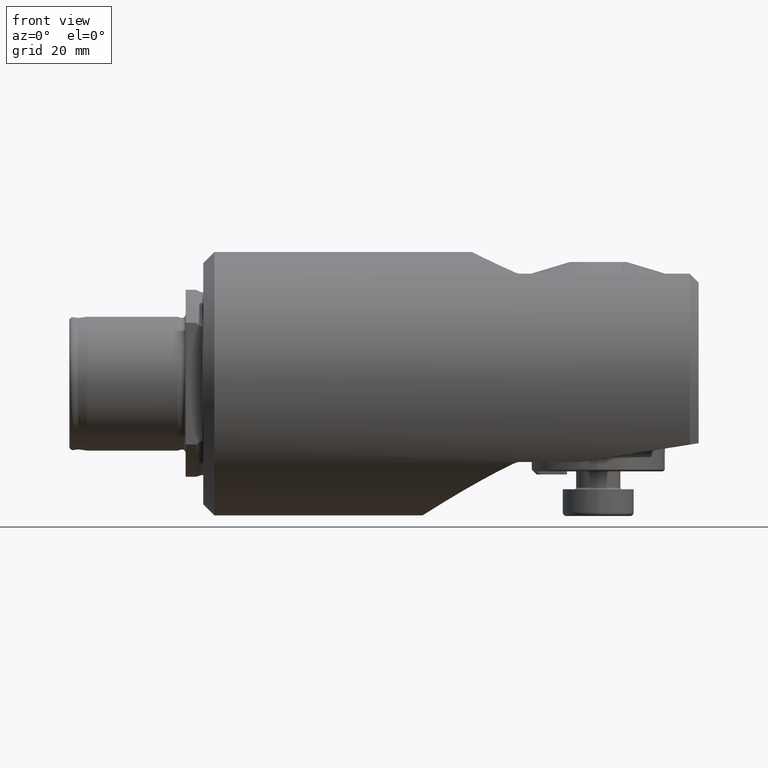
[diagram: clean part render]
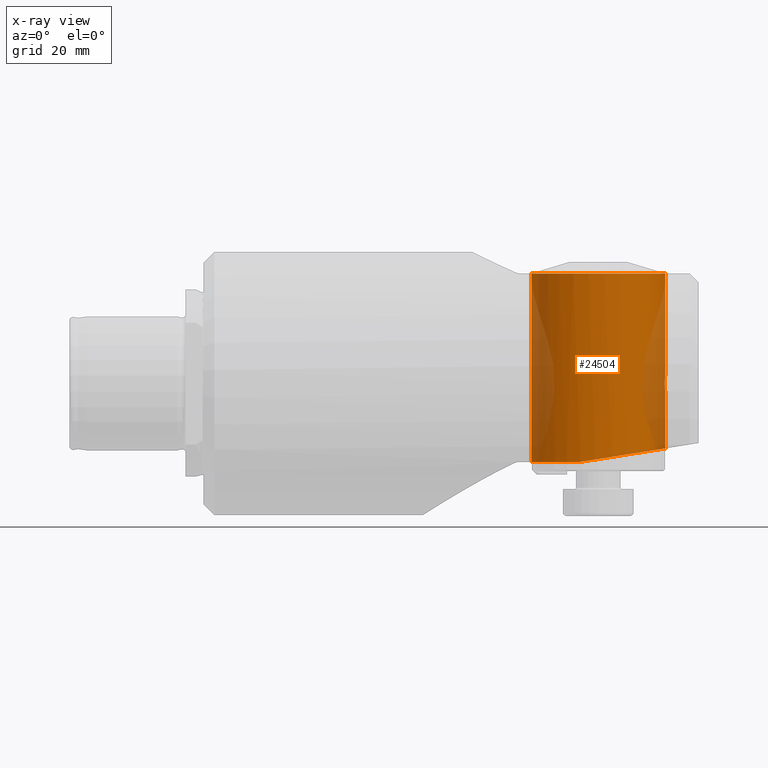
[diagram: x-ray — body ghosted, one internal face saturated and labeled with its STEP entity id]
A machine part, front view, then the same camera in x-ray: the body is ghosted and one INTERNAL B-rep face — a face not visible from any outside direction — is saturated and labeled: STEP entity #24504.
In plain terms, the highlighted cylindrical surface (partial cylindrical patch) has radius 15 mm, axis along (0, 0, 1).
Its self-contained STEP definition (entity closure, byte-faithful):
#8 = DIRECTION ( 'NONE',  ( -9.925724861851712300E-016, -6.123031769111787700E-017, -1.000000000000000000 ) ) ;
#39 = CIRCLE ( 'NONE', #6549, 15.00000000000000700 ) ;
#47 = EDGE_CURVE ( 'NONE', #17329, #16570, #21514, .T. ) ;
#57 = ORIENTED_EDGE ( 'NONE', *, *, #14494, .T. ) ;
#74 = EDGE_CURVE ( 'NONE', #14974, #10625, #25104, .T. ) ;
#99 = CARTESIAN_POINT ( 'NONE',  ( -8.133191757876966600, -4.312171255187561100, 24.65000000000002700 ) ) ;
#299 = ORIENTED_EDGE ( 'NONE', *, *, #24471, .F. ) ;
#690 = CARTESIAN_POINT ( 'NONE',  ( -7.648431497909873800, -2.104973403091988400, 24.65000000000002700 ) ) ;
#730 = VERTEX_POINT ( 'NONE', #6641 ) ;
#860 = VERTEX_POINT ( 'NONE', #17472 ) ;
#884 = AXIS2_PLACEMENT_3D ( 'NONE', #21327, #11118, #8999 ) ;
#959 = CARTESIAN_POINT ( 'NONE',  ( -7.499999999999992000, 1.585807634720539000E-023, 1.650000000000000400 ) ) ;
#962 = DIRECTION ( 'NONE',  ( -9.925724861851714300E-016, -6.123031769111788900E-017, -1.000000000000000000 ) ) ;
#974 = EDGE_CURVE ( 'NONE', #4336, #13707, #23107, .T. ) ;
#1047 = CARTESIAN_POINT ( 'NONE',  ( -7.499999999999992000, -10.82252167691391000, -14.53363547187129300 ) ) ;
#1270 = DIRECTION ( 'NONE',  ( 1.000000000000000000, 0.0000000000000000000, 1.387778780781445700E-015 ) ) ;
#1286 = DIRECTION ( 'NONE',  ( 1.430699774001496500E-015, 0.0000000000000000000, -1.000000000000000000 ) ) ;
#1454 = DIRECTION ( 'NONE',  ( 1.000000000000000000, 0.0000000000000000000, 1.387778780781445700E-015 ) ) ;
#1636 = CARTESIAN_POINT ( 'NONE',  ( -7.500750018750973200, -0.1499999999999999700, 24.64999999998304100 ) ) ;
#1646 = CARTESIAN_POINT ( 'NONE',  ( -7.522600801450062500, -0.8279621712489080300, 1.431267066830854500 ) ) ;
#1734 = CARTESIAN_POINT ( 'NONE',  ( -7.499999999999992000, 1.585807634720539000E-023, 1.650000000000000400 ) ) ;
#1752 = ORIENTED_EDGE ( 'NONE', *, *, #14584, .F. ) ;
#1875 = CARTESIAN_POINT ( 'NONE',  ( -9.075163162305472000, -6.691319442477679400, 24.65999999998304300 ) ) ;
#1909 = CARTESIAN_POINT ( 'NONE',  ( -22.49999999999999300, 0.0000000000000000000, 24.65000000000000600 ) ) ;
#1994 = DIRECTION ( 'NONE',  ( 1.430699774001496500E-015, 0.0000000000000000000, -1.000000000000000000 ) ) ;
#2008 = CARTESIAN_POINT ( 'NONE',  ( -7.539447823765458500, -1.089882594208043000, 1.243590742274552200 ) ) ;
#2052 = DIRECTION ( 'NONE',  ( -0.0000000000000000000, 0.0000000000000000000, 1.000000000000000000 ) ) ;
#2290 = VERTEX_POINT ( 'NONE', #14420 ) ;
#2369 = AXIS2_PLACEMENT_3D ( 'NONE', #1909, #1994, #16353 ) ;
#2594 = ORIENTED_EDGE ( 'NONE', *, *, #19041, .F. ) ;
#2992 = VECTOR ( 'NONE', #22804, 1000.000000000000000 ) ;
#3311 = ORIENTED_EDGE ( 'NONE', *, *, #4922, .F. ) ;
#3533 = VECTOR ( 'NONE', #13720, 1000.000000000000000 ) ;
#3662 = CIRCLE ( 'NONE', #884, 15.00000000000000000 ) ;
#3772 = CARTESIAN_POINT ( 'NONE',  ( -7.499999999999994700, -0.1077280195132854200, 1.650000000000001200 ) ) ;
#4020 = ORIENTED_EDGE ( 'NONE', *, *, #16643, .F. ) ;
#4138 = CARTESIAN_POINT ( 'NONE',  ( -10.23271904283283400, -8.632138664196965300, 24.65999999998304700 ) ) ;
#4336 = VERTEX_POINT ( 'NONE', #17940 ) ;
#4572 = CARTESIAN_POINT ( 'NONE',  ( -22.49999999999999300, 0.0000000000000000000, 24.65000000000000600 ) ) ;
#4726 = CARTESIAN_POINT ( 'NONE',  ( -10.06253835809483200, -8.385078884908466500, 24.65000000000002300 ) ) ;
#4922 = EDGE_CURVE ( 'NONE', #11332, #8201, #19483, .T. ) ;
#5184 = CIRCLE ( 'NONE', #17991, 15.00000000000000000 ) ;
#5193 = ORIENTED_EDGE ( 'NONE', *, *, #21502, .F. ) ;
#5317 = EDGE_CURVE ( 'NONE', #730, #9685, #21041, .T. ) ;
#5391 = DIRECTION ( 'NONE',  ( -9.925724861851712300E-016, -6.123031769111787700E-017, -1.000000000000000000 ) ) ;
#5595 = DIRECTION ( 'NONE',  ( -9.925724861851712300E-016, -6.123031769111787700E-017, -1.000000000000000000 ) ) ;
#5655 = VECTOR ( 'NONE', #25968, 1000.000000000000000 ) ;
#5737 = DIRECTION ( 'NONE',  ( -0.0000000000000000000, 0.0000000000000000000, 1.000000000000000000 ) ) ;
#5845 = VECTOR ( 'NONE', #10706, 1000.000000000000000 ) ;
#5965 = CARTESIAN_POINT ( 'NONE',  ( -7.581903310961537900, -1.565924709530817700, 0.5311105344068015600 ) ) ;
#6143 = CARTESIAN_POINT ( 'NONE',  ( -7.509111904954366400, -0.5322325666824772000, -1.565542981768537100 ) ) ;
#6549 = AXIS2_PLACEMENT_3D ( 'NONE', #25327, #17288, #18971 ) ;
#6641 = CARTESIAN_POINT ( 'NONE',  ( -9.075163162305472000, -6.691319442477679400, 24.64999999998304100 ) ) ;
#6664 = VERTEX_POINT ( 'NONE', #19544 ) ;
#6738 = LINE ( 'NONE', #24832, #18415 ) ;
#6770 = AXIS2_PLACEMENT_3D ( 'NONE', #18520, #8, #22848 ) ;
#6850 = DIRECTION ( 'NONE',  ( -1.000000000000000000, 0.0000000000000000000, 9.251858538542975800E-016 ) ) ;
#7303 = CARTESIAN_POINT ( 'NONE',  ( -9.075163162305472000, -6.691319442477679400, 24.65999999998304300 ) ) ;
#7518 = VECTOR ( 'NONE', #25715, 1000.000000000000000 ) ;
#7530 = EDGE_CURVE ( 'NONE', #15724, #860, #15980, .T. ) ;
#7585 = CARTESIAN_POINT ( 'NONE',  ( -22.50000000000002100, 6.123031769111788000E-019, 24.65999999998305700 ) ) ;
#7591 = DIRECTION ( 'NONE',  ( -9.925724861851714300E-016, -6.123031769111788900E-017, -1.000000000000000000 ) ) ;
#7604 = CARTESIAN_POINT ( 'NONE',  ( -22.50000000000002100, 6.123031769111788000E-019, 24.65999999998305700 ) ) ;
#7830 = EDGE_CURVE ( 'NONE', #13247, #20445, #26345, .T. ) ;
#7906 = VERTEX_POINT ( 'NONE', #18086 ) ;
#7943 = CARTESIAN_POINT ( 'NONE',  ( -7.517539210869959000, -0.7320287462929104800, -1.482676717090739100 ) ) ;
#8030 = CARTESIAN_POINT ( 'NONE',  ( -7.517511305855823200, -0.7314594333631125900, 1.482957601476405200 ) ) ;
#8201 = VERTEX_POINT ( 'NONE', #4138 ) ;
#8202 = CARTESIAN_POINT ( 'NONE',  ( -7.591017481440503400, -1.649921291316965200, -0.2160209898537130100 ) ) ;
#8337 = VERTEX_POINT ( 'NONE', #24949 ) ;
#8700 = EDGE_CURVE ( 'NONE', #18655, #22109, #5184, .T. ) ;
#8731 = DIRECTION ( 'NONE',  ( 1.000000000000000000, 0.0000000000000000000, 1.387778780781445700E-015 ) ) ;
#8800 = CARTESIAN_POINT ( 'NONE',  ( -7.499999999999992000, -9.496446371565344400E-017, -1.649999999999993000 ) ) ;
#8999 = DIRECTION ( 'NONE',  ( 1.000000000000000000, 0.0000000000000000000, 1.387778780781445700E-015 ) ) ;
#9041 = ORIENTED_EDGE ( 'NONE', *, *, #47, .F. ) ;
#9089 = CARTESIAN_POINT ( 'NONE',  ( -7.499999999999992900, 0.0000000000000000000, 24.30887018886629400 ) ) ;
#9534 = CIRCLE ( 'NONE', #16434, 15.00000000000001400 ) ;
#9685 = VERTEX_POINT ( 'NONE', #4726 ) ;
#9776 = CARTESIAN_POINT ( 'NONE',  ( -22.49999999999999300, 0.0000000000000000000, 24.65000000000000600 ) ) ;
#9824 = EDGE_CURVE ( 'NONE', #18655, #4336, #11934, .T. ) ;
#10027 = LINE ( 'NONE', #7303, #3533 ) ;
#10041 = CARTESIAN_POINT ( 'NONE',  ( -7.551464650040493600, -1.243887606660989000, 1.089543769393327400 ) ) ;
#10205 = VECTOR ( 'NONE', #7591, 1000.000000000000000 ) ;
#10225 = CARTESIAN_POINT ( 'NONE',  ( -7.557329058097703700, -1.319035151846401900, -1.014357004551124300 ) ) ;
#10244 = EDGE_CURVE ( 'NONE', #12865, #17329, #12306, .T. ) ;
#10320 = CARTESIAN_POINT ( 'NONE',  ( -7.568345859743725900, -1.431537890829039000, 0.8274954203538418300 ) ) ;
#10384 = CARTESIAN_POINT ( 'NONE',  ( -22.49999999999999300, 0.0000000000000000000, 24.65000000000000600 ) ) ;
#10416 = AXIS2_PLACEMENT_3D ( 'NONE', #4572, #21156, #8731 ) ;
#10418 = ORIENTED_EDGE ( 'NONE', *, *, #74, .F. ) ;
#10433 = VERTEX_POINT ( 'NONE', #20108 ) ;
#10554 = ORIENTED_EDGE ( 'NONE', *, *, #15267, .F. ) ;
#10584 = CARTESIAN_POINT ( 'NONE',  ( -7.500750018750973200, -0.1499999999999999700, 24.65999999998304300 ) ) ;
#10625 = VERTEX_POINT ( 'NONE', #11294 ) ;
#10706 = DIRECTION ( 'NONE',  ( -9.925724861851714300E-016, -6.123031769111788900E-017, -1.000000000000000000 ) ) ;
#10830 = EDGE_CURVE ( 'NONE', #8337, #12386, #6738, .T. ) ;
#10867 = CARTESIAN_POINT ( 'NONE',  ( -11.46333526292900400, -10.15834787165183300, 24.65999999998304700 ) ) ;
#11087 = DIRECTION ( 'NONE',  ( -1.000000000000000000, 0.0000000000000000000, 9.251858538542954100E-016 ) ) ;
#11118 = DIRECTION ( 'NONE',  ( 1.430699774001496500E-015, 0.0000000000000000000, -1.000000000000000000 ) ) ;
#11294 = CARTESIAN_POINT ( 'NONE',  ( -11.66869939470757200, -10.37703845987823200, 24.64999999998304500 ) ) ;
#11332 = VERTEX_POINT ( 'NONE', #22444 ) ;
#11401 = AXIS2_PLACEMENT_3D ( 'NONE', #10384, #26809, #24623 ) ;
#11430 = CARTESIAN_POINT ( 'NONE',  ( -8.222304232350071000, -4.598630618611547800, 24.64999999998304100 ) ) ;
#11440 = VERTEX_POINT ( 'NONE', #12765 ) ;
#11457 = DIRECTION ( 'NONE',  ( -9.925724861851714300E-016, -6.123031769111788900E-017, -1.000000000000000000 ) ) ;
#11501 = VERTEX_POINT ( 'NONE', #15314 ) ;
#11593 = AXIS2_PLACEMENT_3D ( 'NONE', #13824, #1286, #1454 ) ;
#11754 = VERTEX_POINT ( 'NONE', #17451 ) ;
#11800 = CARTESIAN_POINT ( 'NONE',  ( -8.944028432310194200, -6.421497867007770000, 24.65999999998304300 ) ) ;
#11875 = DIRECTION ( 'NONE',  ( 1.430699774001496500E-015, 0.0000000000000000000, -1.000000000000000000 ) ) ;
#11931 = ORIENTED_EDGE ( 'NONE', *, *, #20898, .F. ) ;
#11934 =( BOUNDED_CURVE ( )  B_SPLINE_CURVE ( 3, ( #19534, #17587, #1047, #15700 ),
 .UNSPECIFIED., .F., .F. ) 
 B_SPLINE_CURVE_WITH_KNOTS ( ( 4, 4 ),
 ( 4.439371469378471600, 6.283185307179586200 ),
 .UNSPECIFIED. ) 
 CURVE ( )  GEOMETRIC_REPRESENTATION_ITEM ( )  RATIONAL_B_SPLINE_CURVE ( ( 1.000000000000000000, 0.7362012722085140600, 0.7362012722085140600, 1.000000000000000000 ) ) 
 REPRESENTATION_ITEM ( '' )  );
#12086 = CARTESIAN_POINT ( 'NONE',  ( -7.501189450204941000, -0.2163764303156508500, -1.639284345520635200 ) ) ;
#12091 = EDGE_CURVE ( 'NONE', #10433, #16570, #13199, .T. ) ;
#12156 = CARTESIAN_POINT ( 'NONE',  ( -7.522533257688299300, -0.8267757454532977900, -1.431979622812382200 ) ) ;
#12199 = CIRCLE ( 'NONE', #2369, 15.00000000000000000 ) ;
#12231 = CARTESIAN_POINT ( 'NONE',  ( -22.49999999999999300, 0.0000000000000000000, -17.54999999999999700 ) ) ;
#12245 = CARTESIAN_POINT ( 'NONE',  ( -7.505718569946157700, -0.4273886575265194400, -1.597313638733119900 ) ) ;
#12306 = LINE ( 'NONE', #15914, #24615 ) ;
#12343 = CARTESIAN_POINT ( 'NONE',  ( -7.591030529431079400, -1.650039189597465800, 0.1071074539522560700 ) ) ;
#12386 = VERTEX_POINT ( 'NONE', #99 ) ;
#12432 = CARTESIAN_POINT ( 'NONE',  ( -7.557377236452211400, -1.312105576321888500, 1.006194991127883400 ) ) ;
#12490 = ORIENTED_EDGE ( 'NONE', *, *, #7530, .F. ) ;
#12765 = CARTESIAN_POINT ( 'NONE',  ( -37.49999999999999300, 1.836970198721029600E-015, 24.64999999999998400 ) ) ;
#12865 = VERTEX_POINT ( 'NONE', #10584 ) ;
#13032 = AXIS2_PLACEMENT_3D ( 'NONE', #7585, #5595, #19913 ) ;
#13100 = EDGE_CURVE ( 'NONE', #11332, #9685, #25015, .T. ) ;
#13132 = LINE ( 'NONE', #11800, #10205 ) ;
#13157 = LINE ( 'NONE', #19672, #5655 ) ;
#13159 = VECTOR ( 'NONE', #5737, 1000.000000000000000 ) ;
#13199 = LINE ( 'NONE', #23692, #26175 ) ;
#13247 = VERTEX_POINT ( 'NONE', #21169 ) ;
#13353 = DIRECTION ( 'NONE',  ( -9.925724861851714300E-016, -6.123031769111788900E-017, -1.000000000000000000 ) ) ;
#13421 = DIRECTION ( 'NONE',  ( -9.925724861851714300E-016, -6.123031769111788900E-017, -1.000000000000000000 ) ) ;
#13450 = CARTESIAN_POINT ( 'NONE',  ( -10.06253835809482700, -8.385078884908470100, 24.65999999998304300 ) ) ;
#13707 = VERTEX_POINT ( 'NONE', #8800 ) ;
#13720 = DIRECTION ( 'NONE',  ( -9.925724861851714300E-016, -6.123031769111788900E-017, -1.000000000000000000 ) ) ;
#13824 = CARTESIAN_POINT ( 'NONE',  ( -22.49999999999999300, 0.0000000000000000000, 24.65000000000000600 ) ) ;
#13833 = VERTEX_POINT ( 'NONE', #23689 ) ;
#14083 = ORIENTED_EDGE ( 'NONE', *, *, #12091, .T. ) ;
#14170 = DIRECTION ( 'NONE',  ( 1.000000000000000000, 8.881784197001252300E-016, -2.312964634635743000E-016 ) ) ;
#14340 = EDGE_CURVE ( 'NONE', #13707, #15724, #15945, .T. ) ;
#14420 = CARTESIAN_POINT ( 'NONE',  ( -11.46333526292899300, -10.15834787165184100, 24.65000000000002300 ) ) ;
#14427 = CIRCLE ( 'NONE', #16780, 15.00000000000002700 ) ;
#14470 = CIRCLE ( 'NONE', #15082, 14.99999999999999300 ) ;
#14494 = EDGE_CURVE ( 'NONE', #7906, #2290, #16263, .T. ) ;
#14559 = LINE ( 'NONE', #25714, #23586 ) ;
#14584 = EDGE_CURVE ( 'NONE', #23922, #730, #10027, .T. ) ;
#14658 = CARTESIAN_POINT ( 'NONE',  ( -37.49999999999999300, 1.836970198721029600E-015, -17.54999999999999400 ) ) ;
#14786 = CARTESIAN_POINT ( 'NONE',  ( -8.944028432310180000, -6.421497867007776300, 24.65000000000002700 ) ) ;
#14974 = VERTEX_POINT ( 'NONE', #21328 ) ;
#15059 = AXIS2_PLACEMENT_3D ( 'NONE', #9776, #11875, #1270 ) ;
#15082 = AXIS2_PLACEMENT_3D ( 'NONE', #17400, #19618, #6850 ) ;
#15225 = ORIENTED_EDGE ( 'NONE', *, *, #14340, .F. ) ;
#15267 = EDGE_CURVE ( 'NONE', #11501, #2290, #16232, .T. ) ;
#15314 = CARTESIAN_POINT ( 'NONE',  ( -10.23271904283283400, -8.632138664196965300, 24.64999999998304500 ) ) ;
#15495 = DIRECTION ( 'NONE',  ( -9.925724861851714300E-016, -6.123031769111788900E-017, -1.000000000000000000 ) ) ;
#15680 = VECTOR ( 'NONE', #962, 1000.000000000000000 ) ;
#15700 = CARTESIAN_POINT ( 'NONE',  ( -7.499999999999992900, 0.0000000000000000000, -14.53363547187129400 ) ) ;
#15724 = VERTEX_POINT ( 'NONE', #959 ) ;
#15884 = DIRECTION ( 'NONE',  ( -1.000000000000000000, 0.0000000000000000000, 9.251858538542962000E-016 ) ) ;
#15914 = CARTESIAN_POINT ( 'NONE',  ( -7.500750018750973200, -0.1499999999999999700, 24.65999999998304300 ) ) ;
#15945 = B_SPLINE_CURVE_WITH_KNOTS ( 'NONE', 3,
 ( #16532, #24657, #12086, #12245, #6143, #7943, #12156, #18507, #22470, #10225, #24746, #20627, #8202, #12343, #26580, #26836, #5965, #22752, #10320, #12432, #10041, #2008, #24553, #1646, #8030, #16623, #18680, #16278, #3772, #1734 ),
 .UNSPECIFIED., .F., .F.,
 ( 4, 2, 2, 2, 2, 2, 2, 2, 2, 2, 2, 2, 2, 2, 4 ),
 ( 1.127344678340880800E-019, 0.0003226597670387186600, 0.0006453195340774372200, 0.0009679793011161558800, 0.001290639068154874400, 0.001935958602232311800, 0.002581278136309748900, 0.002903937903348467700, 0.003226597670387186200, 0.003549257437425904600, 0.003871917204464623500, 0.004194576971503343300, 0.004517236738542062600, 0.004839896505580781000, 0.005162556272619500300 ),
 .UNSPECIFIED. ) ;
#15980 = LINE ( 'NONE', #24708, #22082 ) ;
#16232 = CIRCLE ( 'NONE', #11593, 15.00000000000000000 ) ;
#16255 = CARTESIAN_POINT ( 'NONE',  ( -26.54457610828628200, -14.44442467197221800, -17.54999999999999700 ) ) ;
#16263 = LINE ( 'NONE', #10867, #25638 ) ;
#16278 = CARTESIAN_POINT ( 'NONE',  ( -7.501198635632343700, -0.2171575323042625700, 1.639201985177707300 ) ) ;
#16292 = CARTESIAN_POINT ( 'NONE',  ( -22.49999999999999300, 0.0000000000000000000, 24.30887018886629400 ) ) ;
#16327 = ORIENTED_EDGE ( 'NONE', *, *, #16340, .F. ) ;
#16340 = EDGE_CURVE ( 'NONE', #13833, #12386, #20990, .T. ) ;
#16353 = DIRECTION ( 'NONE',  ( 1.000000000000000000, 0.0000000000000000000, 1.387778780781445700E-015 ) ) ;
#16434 = AXIS2_PLACEMENT_3D ( 'NONE', #26185, #5391, #15884 ) ;
#16532 = CARTESIAN_POINT ( 'NONE',  ( -7.499999999999992000, -9.496446371565344400E-017, -1.649999999999993000 ) ) ;
#16570 = VERTEX_POINT ( 'NONE', #690 ) ;
#16623 = CARTESIAN_POINT ( 'NONE',  ( -7.509090532307777900, -0.5316330541545064600, 1.565746609820021500 ) ) ;
#16643 = EDGE_CURVE ( 'NONE', #11754, #13833, #14559, .T. ) ;
#16780 = AXIS2_PLACEMENT_3D ( 'NONE', #7604, #25572, #11087 ) ;
#17288 = DIRECTION ( 'NONE',  ( -9.925724861851712300E-016, -6.123031769111787700E-017, -1.000000000000000000 ) ) ;
#17329 = VERTEX_POINT ( 'NONE', #1636 ) ;
#17400 = CARTESIAN_POINT ( 'NONE',  ( -22.50000000000002100, 6.123031769111788000E-019, 24.65999999998305700 ) ) ;
#17451 = CARTESIAN_POINT ( 'NONE',  ( -7.693499174646119900, -2.401568926513363500, 24.65999999998304300 ) ) ;
#17472 = CARTESIAN_POINT ( 'NONE',  ( -7.500000000000029300, -6.112570624275895000E-032, 24.65999999998304300 ) ) ;
#17587 = CARTESIAN_POINT ( 'NONE',  ( -16.12290283342165900, -17.36259217902932100, -15.89936911111552400 ) ) ;
#17669 = ORIENTED_EDGE ( 'NONE', *, *, #9824, .F. ) ;
#17940 = CARTESIAN_POINT ( 'NONE',  ( -7.499999999999992900, 0.0000000000000000000, -14.53363547187129400 ) ) ;
#17991 = AXIS2_PLACEMENT_3D ( 'NONE', #12231, #24643, #14170 ) ;
#18086 = CARTESIAN_POINT ( 'NONE',  ( -11.46333526292900400, -10.15834787165183300, 24.65999999998304700 ) ) ;
#18322 = ORIENTED_EDGE ( 'NONE', *, *, #8700, .T. ) ;
#18415 = VECTOR ( 'NONE', #22831, 1000.000000000000000 ) ;
#18463 = CIRCLE ( 'NONE', #6770, 15.00000000000002000 ) ;
#18507 = CARTESIAN_POINT ( 'NONE',  ( -7.533508785631777700, -1.006085921063250700, -1.312217547839557900 ) ) ;
#18520 = CARTESIAN_POINT ( 'NONE',  ( -22.50000000000002100, 6.123031769111788000E-019, 24.65999999998305700 ) ) ;
#18533 = ORIENTED_EDGE ( 'NONE', *, *, #7830, .F. ) ;
#18655 = VERTEX_POINT ( 'NONE', #16255 ) ;
#18665 = LINE ( 'NONE', #20411, #13159 ) ;
#18680 = CARTESIAN_POINT ( 'NONE',  ( -7.505755797466852300, -0.4287663191000521400, 1.596965868656060400 ) ) ;
#18971 = DIRECTION ( 'NONE',  ( -1.000000000000000000, 0.0000000000000000000, 9.251858538542965900E-016 ) ) ;
#19041 = EDGE_CURVE ( 'NONE', #10625, #11440, #12199, .T. ) ;
#19483 = CIRCLE ( 'NONE', #13032, 15.00000000000002700 ) ;
#19494 = ORIENTED_EDGE ( 'NONE', *, *, #13100, .T. ) ;
#19534 = CARTESIAN_POINT ( 'NONE',  ( -26.54457610828628200, -14.44442467197221800, -17.54999999999999700 ) ) ;
#19544 = CARTESIAN_POINT ( 'NONE',  ( -8.944028432310194200, -6.421497867007770000, 24.65999999998304300 ) ) ;
#19618 = DIRECTION ( 'NONE',  ( -9.925724861851712300E-016, -6.123031769111787700E-017, -1.000000000000000000 ) ) ;
#19672 = CARTESIAN_POINT ( 'NONE',  ( -10.23271904283283400, -8.632138664196965300, 24.65999999998304700 ) ) ;
#19679 = ORIENTED_EDGE ( 'NONE', *, *, #10830, .T. ) ;
#19738 = FACE_OUTER_BOUND ( 'NONE', #26356, .T. ) ;
#19771 = EDGE_CURVE ( 'NONE', #8201, #11501, #13157, .T. ) ;
#19913 = DIRECTION ( 'NONE',  ( -1.000000000000000000, 0.0000000000000000000, 9.251858538542954100E-016 ) ) ;
#19935 = AXIS2_PLACEMENT_3D ( 'NONE', #16292, #24762, #26952 ) ;
#20108 = CARTESIAN_POINT ( 'NONE',  ( -7.648431497909891500, -2.104973403091986700, 24.65999999998304300 ) ) ;
#20148 = EDGE_CURVE ( 'NONE', #6664, #23746, #13132, .T. ) ;
#20160 = ORIENTED_EDGE ( 'NONE', *, *, #10244, .F. ) ;
#20254 = ORIENTED_EDGE ( 'NONE', *, *, #19771, .F. ) ;
#20344 = ORIENTED_EDGE ( 'NONE', *, *, #21313, .F. ) ;
#20411 = CARTESIAN_POINT ( 'NONE',  ( -37.49999999999999300, 1.836970198721029600E-015, 24.30887018886629400 ) ) ;
#20445 = VERTEX_POINT ( 'NONE', #11430 ) ;
#20627 = CARTESIAN_POINT ( 'NONE',  ( -7.586050223153409700, -1.606532212155567400, -0.4332946469039840000 ) ) ;
#20845 = ORIENTED_EDGE ( 'NONE', *, *, #974, .F. ) ;
#20865 = CARTESIAN_POINT ( 'NONE',  ( -11.66869939470757200, -10.37703845987823200, 24.65999999998304700 ) ) ;
#20898 = EDGE_CURVE ( 'NONE', #860, #12865, #14470, .T. ) ;
#20990 = CIRCLE ( 'NONE', #15059, 15.00000000000000000 ) ;
#21041 = CIRCLE ( 'NONE', #10416, 15.00000000000000000 ) ;
#21115 = EDGE_CURVE ( 'NONE', #22109, #11440, #18665, .T. ) ;
#21156 = DIRECTION ( 'NONE',  ( 1.430699774001496500E-015, 0.0000000000000000000, -1.000000000000000000 ) ) ;
#21169 = CARTESIAN_POINT ( 'NONE',  ( -8.222304232350071000, -4.598630618611547800, 24.65999999998304300 ) ) ;
#21313 = EDGE_CURVE ( 'NONE', #10433, #11754, #39, .T. ) ;
#21327 = CARTESIAN_POINT ( 'NONE',  ( -22.49999999999999300, 0.0000000000000000000, 24.65000000000000600 ) ) ;
#21328 = CARTESIAN_POINT ( 'NONE',  ( -11.66869939470757200, -10.37703845987823200, 24.65999999998304700 ) ) ;
#21475 = ORIENTED_EDGE ( 'NONE', *, *, #20148, .T. ) ;
#21502 = EDGE_CURVE ( 'NONE', #6664, #23922, #9534, .T. ) ;
#21514 = CIRCLE ( 'NONE', #11401, 15.00000000000000000 ) ;
#21726 = EDGE_CURVE ( 'NONE', #20445, #23746, #3662, .T. ) ;
#21965 = ORIENTED_EDGE ( 'NONE', *, *, #21115, .T. ) ;
#22082 = VECTOR ( 'NONE', #2052, 1000.000000000000000 ) ;
#22109 = VERTEX_POINT ( 'NONE', #14658 ) ;
#22201 = ORIENTED_EDGE ( 'NONE', *, *, #5317, .F. ) ;
#22266 = EDGE_CURVE ( 'NONE', #8337, #13247, #14427, .T. ) ;
#22444 = CARTESIAN_POINT ( 'NONE',  ( -10.06253835809482700, -8.385078884908470100, 24.65999999998304300 ) ) ;
#22470 = CARTESIAN_POINT ( 'NONE',  ( -7.539528236254154700, -1.090917851447947200, -1.242564568750565800 ) ) ;
#22752 = CARTESIAN_POINT ( 'NONE',  ( -7.573450857611327100, -1.483192408042680800, 0.7309848674231310700 ) ) ;
#22804 = DIRECTION ( 'NONE',  ( -9.925724861851714300E-016, -6.123031769111788900E-017, -1.000000000000000000 ) ) ;
#22831 = DIRECTION ( 'NONE',  ( -9.925724861851714300E-016, -6.123031769111788900E-017, -1.000000000000000000 ) ) ;
#22848 = DIRECTION ( 'NONE',  ( -1.000000000000000000, 0.0000000000000000000, 9.251858538542960000E-016 ) ) ;
#23107 = LINE ( 'NONE', #9089, #7518 ) ;
#23299 = CYLINDRICAL_SURFACE ( 'NONE', #19935, 15.00000000000000000 ) ;
#23586 = VECTOR ( 'NONE', #15495, 1000.000000000000000 ) ;
#23689 = CARTESIAN_POINT ( 'NONE',  ( -7.693499174646119900, -2.401568926513363500, 24.64999999998304100 ) ) ;
#23692 = CARTESIAN_POINT ( 'NONE',  ( -7.648431497909891500, -2.104973403091986700, 24.65999999998304300 ) ) ;
#23746 = VERTEX_POINT ( 'NONE', #14786 ) ;
#23922 = VERTEX_POINT ( 'NONE', #1875 ) ;
#24471 = EDGE_CURVE ( 'NONE', #7906, #14974, #18463, .T. ) ;
#24504 = ADVANCED_FACE ( 'NONE', ( #19738 ), #23299, .F. ) ;
#24553 = CARTESIAN_POINT ( 'NONE',  ( -7.533545579601174300, -1.006603294186956000, 1.311791363649635700 ) ) ;
#24615 = VECTOR ( 'NONE', #11457, 1000.000000000000000 ) ;
#24623 = DIRECTION ( 'NONE',  ( 1.000000000000000000, 0.0000000000000000000, 1.387778780781445700E-015 ) ) ;
#24643 = DIRECTION ( 'NONE',  ( -1.357946011454115300E-016, -0.0000000000000000000, -1.000000000000000000 ) ) ;
#24652 = ORIENTED_EDGE ( 'NONE', *, *, #21726, .F. ) ;
#24657 = CARTESIAN_POINT ( 'NONE',  ( -7.499999999999995600, -0.1091081650953686500, -1.649999999999993000 ) ) ;
#24708 = CARTESIAN_POINT ( 'NONE',  ( -7.499999999999992900, 0.0000000000000000000, 24.30887018886629400 ) ) ;
#24746 = CARTESIAN_POINT ( 'NONE',  ( -7.569237593474924500, -1.441935385131248400, -0.8303688004949996100 ) ) ;
#24762 = DIRECTION ( 'NONE',  ( -0.0000000000000000000, 0.0000000000000000000, 1.000000000000000000 ) ) ;
#24832 = CARTESIAN_POINT ( 'NONE',  ( -8.133191757876968400, -4.312171255187561100, 24.65999999998304300 ) ) ;
#24949 = CARTESIAN_POINT ( 'NONE',  ( -8.133191757876968400, -4.312171255187561100, 24.65999999998304300 ) ) ;
#25015 = LINE ( 'NONE', #13450, #5845 ) ;
#25104 = LINE ( 'NONE', #20865, #2992 ) ;
#25327 = CARTESIAN_POINT ( 'NONE',  ( -22.50000000000002100, 6.123031769111788000E-019, 24.65999999998305700 ) ) ;
#25572 = DIRECTION ( 'NONE',  ( -9.925724861851712300E-016, -6.123031769111787700E-017, -1.000000000000000000 ) ) ;
#25638 = VECTOR ( 'NONE', #13353, 1000.000000000000000 ) ;
#25714 = CARTESIAN_POINT ( 'NONE',  ( -7.693499174646119900, -2.401568926513363500, 24.65999999998304300 ) ) ;
#25715 = DIRECTION ( 'NONE',  ( -0.0000000000000000000, 0.0000000000000000000, 1.000000000000000000 ) ) ;
#25873 = CARTESIAN_POINT ( 'NONE',  ( -8.222304232350071000, -4.598630618611547800, 24.65999999998304300 ) ) ;
#25968 = DIRECTION ( 'NONE',  ( -9.925724861851714300E-016, -6.123031769111788900E-017, -1.000000000000000000 ) ) ;
#26175 = VECTOR ( 'NONE', #13421, 1000.000000000000000 ) ;
#26185 = CARTESIAN_POINT ( 'NONE',  ( -22.50000000000002100, 6.123031769111788000E-019, 24.65999999998305700 ) ) ;
#26277 = ORIENTED_EDGE ( 'NONE', *, *, #22266, .F. ) ;
#26345 = LINE ( 'NONE', #25873, #15680 ) ;
#26356 = EDGE_LOOP ( 'NONE', ( #18322, #21965, #2594, #10418, #299, #57, #10554, #20254, #3311, #19494, #22201, #1752, #5193, #21475, #24652, #18533, #26277, #19679, #16327, #4020, #20344, #14083, #9041, #20160, #11931, #12490, #15225, #20845, #17669 ) ) ;
#26580 = CARTESIAN_POINT ( 'NONE',  ( -7.589829499342858600, -1.639288102742235200, 0.2165230627885881600 ) ) ;
#26809 = DIRECTION ( 'NONE',  ( 1.430699774001496500E-015, 0.0000000000000000000, -1.000000000000000000 ) ) ;
#26836 = CARTESIAN_POINT ( 'NONE',  ( -7.585253333050364900, -1.597116684269962700, 0.4282125842827465600 ) ) ;
#26952 = DIRECTION ( 'NONE',  ( 1.000000000000000000, 0.0000000000000000000, 0.0000000000000000000 ) ) ;